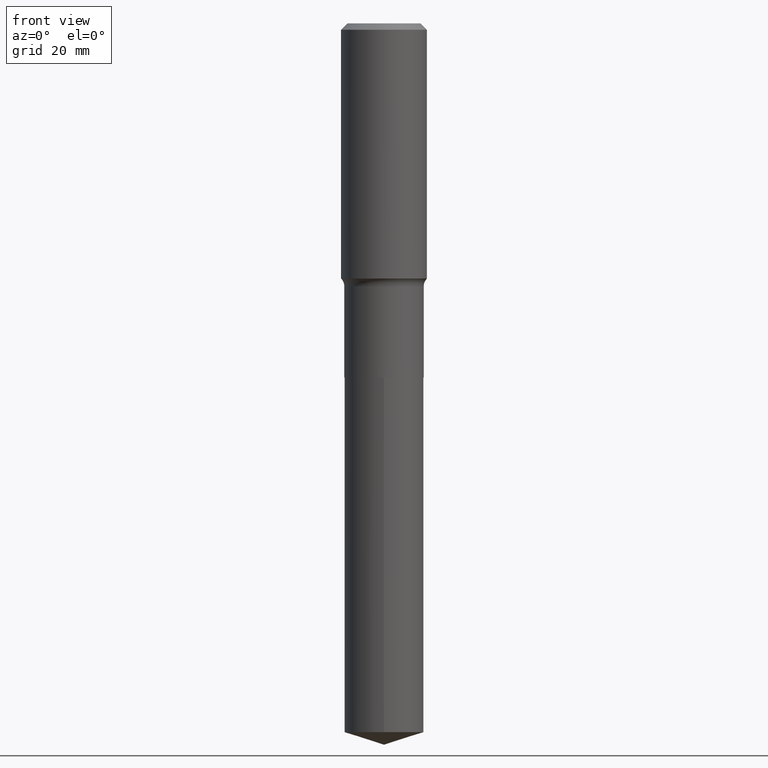
[diagram: clean part render]
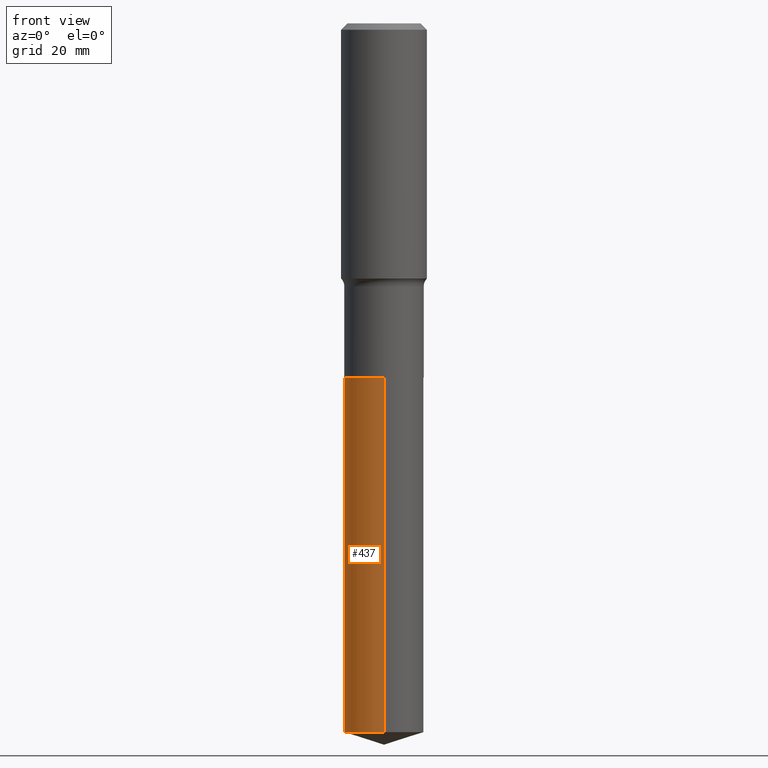
[diagram: same view with one face highlighted and labeled with its STEP entity id]
A machine part, front view. The second image highlights one B-rep face of the part: STEP entity #437.
In plain terms, the highlighted cylindrical surface (partial cylindrical patch) has radius 7.3419 mm, axis along (-0, 0, 1).
Its self-contained STEP definition (entity closure, byte-faithful):
#14 = DIRECTION ( 'NONE',  ( -2.445458499673719709E-29, 3.491496098354104779E-15, 1.000000000000000000 ) ) ;
#20 = ORIENTED_EDGE ( 'NONE', *, *, #99, .F. ) ;
#44 = VECTOR ( 'NONE', #289, 39.37007874015748143 ) ;
#69 = CIRCLE ( 'NONE', #311, 0.2890499999999999736 ) ;
#71 = DIRECTION ( 'NONE',  ( -2.445458499673719709E-29, 3.491496098354104779E-15, 1.000000000000000000 ) ) ;
#80 = CARTESIAN_POINT ( 'NONE',  ( 2.053823777714632509E-15, 0.2890499999999909808, -2.578100000000000946 ) ) ;
#99 = EDGE_CURVE ( 'NONE', #389, #465, #153, .T. ) ;
#105 = DIRECTION ( 'NONE',  ( -6.982962677686265922E-15, -1.000000000000000000, 3.780450432332487407E-15 ) ) ;
#111 = EDGE_LOOP ( 'NONE', ( #20, #362, #114, #155 ) ) ;
#112 = DIRECTION ( 'NONE',  ( -2.445458499673719429E-29, 3.491496098354104779E-15, 1.000000000000000000 ) ) ;
#114 = ORIENTED_EDGE ( 'NONE', *, *, #226, .T. ) ;
#148 = AXIS2_PLACEMENT_3D ( 'NONE', #275, #14, #167 ) ;
#153 = LINE ( 'NONE', #80, #349 ) ;
#155 = ORIENTED_EDGE ( 'NONE', *, *, #376, .F. ) ;
#164 = DIRECTION ( 'NONE',  ( -2.445458499673719709E-29, 3.491496098354104779E-15, 1.000000000000000000 ) ) ;
#167 = DIRECTION ( 'NONE',  ( -6.982962677686265922E-15, -1.000000000000000000, 3.780450432332487407E-15 ) ) ;
#179 = CARTESIAN_POINT ( 'NONE',  ( 6.304663129225901433E-29, -9.001388039671514055E-15, -2.578100000000000058 ) ) ;
#200 = CARTESIAN_POINT ( 'NONE',  ( -2.018425361985088389E-15, -0.2890500000000179592, -5.158862885074531057 ) ) ;
#201 = DIRECTION ( 'NONE',  ( -6.982962677686265922E-15, -1.000000000000000000, 3.780450432332487407E-15 ) ) ;
#206 = CARTESIAN_POINT ( 'NONE',  ( 2.053823777714695223E-15, 0.2890499999999819325, -5.158862885074533722 ) ) ;
#217 = AXIS2_PLACEMENT_3D ( 'NONE', #179, #71, #105 ) ;
#226 = EDGE_CURVE ( 'NONE', #256, #448, #342, .T. ) ;
#253 = CARTESIAN_POINT ( 'NONE',  ( 2.053823777714696012E-15, 0.2890499999999909808, -2.578100000000000946 ) ) ;
#256 = VERTEX_POINT ( 'NONE', #200 ) ;
#275 = CARTESIAN_POINT ( 'NONE',  ( 6.304663129225901433E-29, -9.001388039671514055E-15, -2.578100000000000058 ) ) ;
#289 = DIRECTION ( 'NONE',  ( -2.445458499673719429E-29, 3.491496098354104779E-15, 1.000000000000000000 ) ) ;
#307 = FACE_OUTER_BOUND ( 'NONE', #111, .T. ) ;
#309 = CARTESIAN_POINT ( 'NONE',  ( 1.261581166217388474E-28, -1.801211158368632694E-14, -5.158862885074532834 ) ) ;
#311 = AXIS2_PLACEMENT_3D ( 'NONE', #309, #164, #201 ) ;
#324 = EDGE_CURVE ( 'NONE', #389, #256, #69, .T. ) ;
#328 = CARTESIAN_POINT ( 'NONE',  ( -2.018425361985152287E-15, -0.2890500000000090219, -2.578099999999998726 ) ) ;
#342 = LINE ( 'NONE', #364, #44 ) ;
#349 = VECTOR ( 'NONE', #112, 39.37007874015748143 ) ;
#362 = ORIENTED_EDGE ( 'NONE', *, *, #324, .T. ) ;
#364 = CARTESIAN_POINT ( 'NONE',  ( -2.018425361985152287E-15, -0.2890500000000090219, -2.578099999999998726 ) ) ;
#376 = EDGE_CURVE ( 'NONE', #465, #448, #436, .T. ) ;
#389 = VERTEX_POINT ( 'NONE', #206 ) ;
#432 = CYLINDRICAL_SURFACE ( 'NONE', #217, 0.2890499999999999736 ) ;
#436 = CIRCLE ( 'NONE', #148, 0.2890499999999999736 ) ;
#437 = ADVANCED_FACE ( 'NONE', ( #307 ), #432, .T. ) ;
#448 = VERTEX_POINT ( 'NONE', #328 ) ;
#465 = VERTEX_POINT ( 'NONE', #253 ) ;